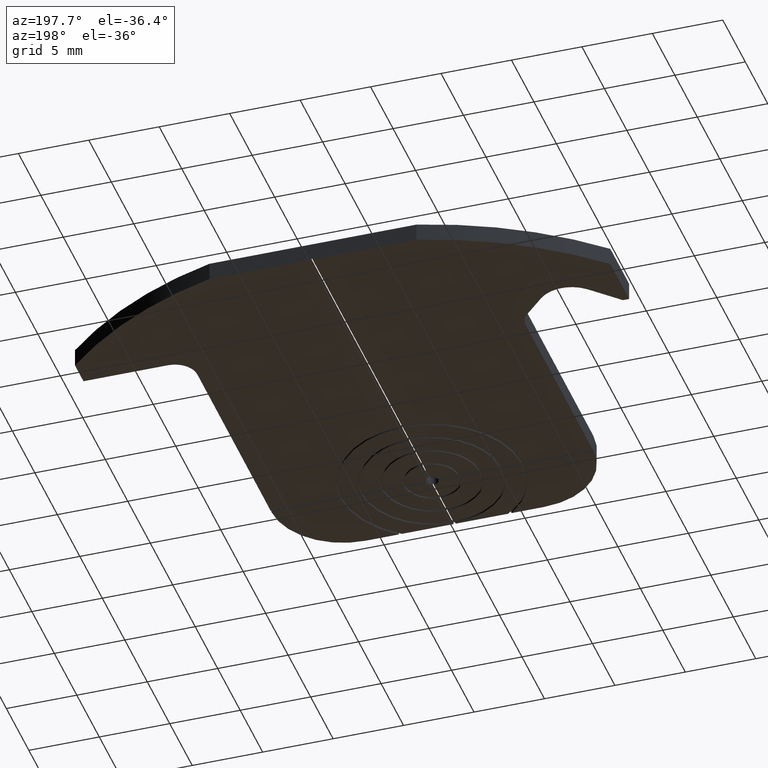
[diagram: clean part render]
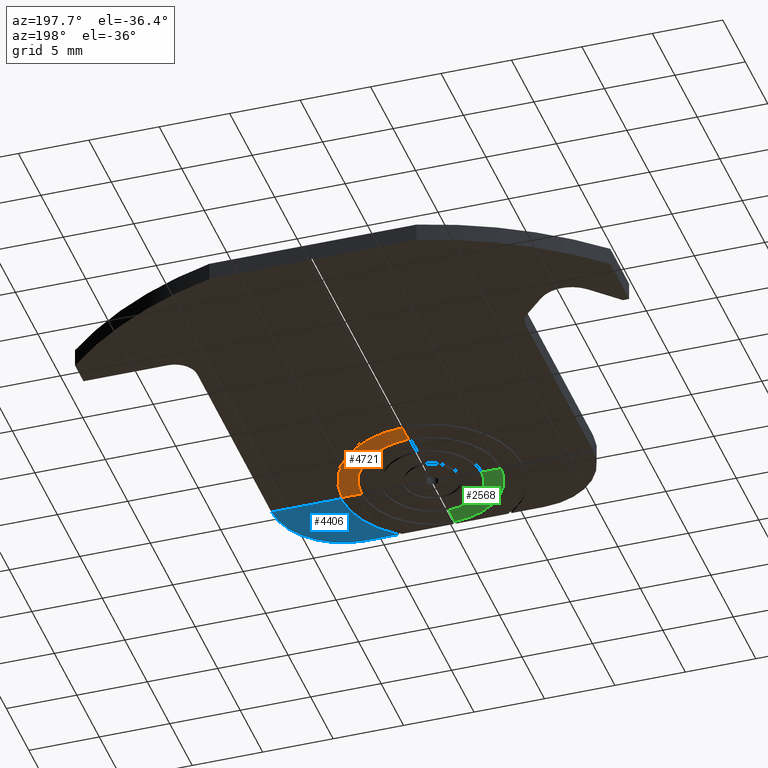
[diagram: same view with three faces highlighted in distinct colors, each labeled with its STEP entity id]
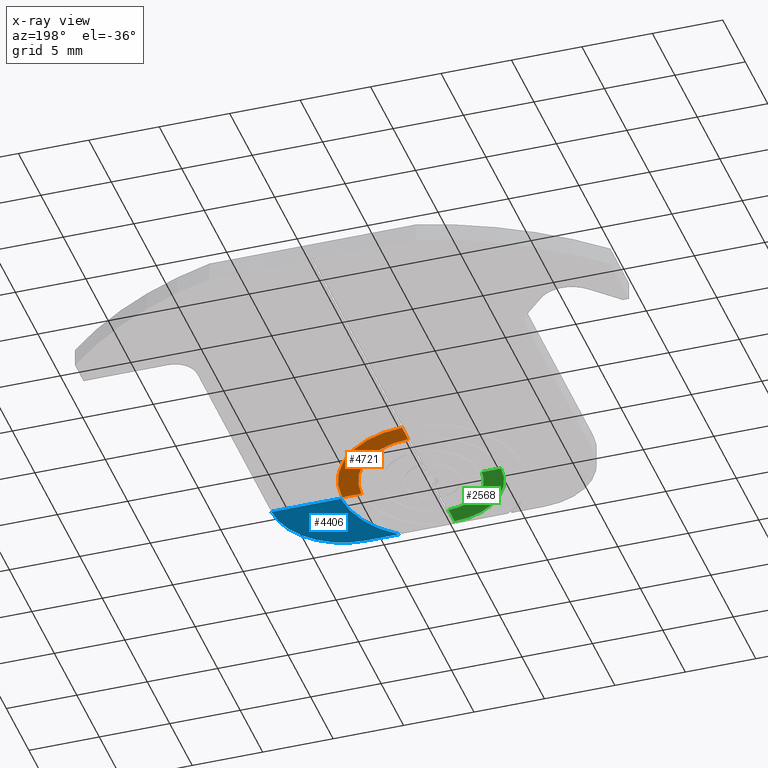
[diagram: x-ray of the same camera — body ghosted, the three highlighted faces saturated]
A machine part, auxiliary view with three faces highlighted in distinct colors.
The next image is the same camera in x-ray (body ghosted, the three faces saturated) — at least one of them is partly hidden behind the body in this view.
Their STEP definitions:

[orange] entity #4721 — the highlighted planar face has unit normal (0, 0, 1).
#69 = LINE ( 'NONE', #4804, #2828 ) ;
#104 = FACE_OUTER_BOUND ( 'NONE', #992, .T. ) ;
#348 = EDGE_CURVE ( 'NONE', #2754, #3452, #4090, .T. ) ;
#364 = CARTESIAN_POINT ( 'NONE',  ( 0.000000000000000000, 0.000000000000000000, 0.000000000000000000 ) ) ;
#481 = VERTEX_POINT ( 'NONE', #2072 ) ;
#524 = ORIENTED_EDGE ( 'NONE', *, *, #985, .T. ) ;
#816 = CARTESIAN_POINT ( 'NONE',  ( 0.08339658199999999688, 4.999294451241167003, 0.000000000000000000 ) ) ;
#907 = CARTESIAN_POINT ( 'NONE',  ( 0.000000000000000000, 0.000000000000000000, 0.000000000000000000 ) ) ;
#928 = DIRECTION ( 'NONE',  ( -1.000000000000000000, 0.000000000000000000, 0.000000000000000000 ) ) ;
#985 = EDGE_CURVE ( 'NONE', #481, #2754, #69, .T. ) ;
#992 = EDGE_LOOP ( 'NONE', ( #2559, #1646, #3490, #524 ) ) ;
#1014 = CARTESIAN_POINT ( 'NONE',  ( 4.999714947753159500, 0.05244465000000059912, 0.000000000000000000 ) ) ;
#1023 = DIRECTION ( 'NONE',  ( 0.000000000000000000, 0.000000000000000000, 1.000000000000000000 ) ) ;
#1037 = DIRECTION ( 'NONE',  ( 1.000000000000000000, 0.000000000000000000, -0.000000000000000000 ) ) ;
#1384 = DIRECTION ( 'NONE',  ( -1.000000000000000000, -1.283143729918167711E-16, 0.000000000000000000 ) ) ;
#1634 = EDGE_CURVE ( 'NONE', #3452, #1877, #3056, .T. ) ;
#1646 = ORIENTED_EDGE ( 'NONE', *, *, #1634, .T. ) ;
#1877 = VERTEX_POINT ( 'NONE', #3876 ) ;
#2072 = CARTESIAN_POINT ( 'NONE',  ( 6.372771207320670150, 0.05244465000000173710, 0.000000000000000000 ) ) ;
#2256 = DIRECTION ( 'NONE',  ( -1.000000000000000000, 0.000000000000000000, 0.000000000000000000 ) ) ;
#2414 = DIRECTION ( 'NONE',  ( 0.000000000000000000, 0.000000000000000000, -1.000000000000000000 ) ) ;
#2424 = DIRECTION ( 'NONE',  ( 0.000000000000000000, 1.000000000000000000, 0.000000000000000000 ) ) ;
#2559 = ORIENTED_EDGE ( 'NONE', *, *, #348, .T. ) ;
#2754 = VERTEX_POINT ( 'NONE', #1014 ) ;
#2828 = VECTOR ( 'NONE', #1384, 1000.000000000000000 ) ;
#2854 = CARTESIAN_POINT ( 'NONE',  ( 0.08339658199999999688, 4.999294451241167003, 0.000000000000000000 ) ) ;
#3005 = CIRCLE ( 'NONE', #3334, 6.372986999999998403 ) ;
#3056 = LINE ( 'NONE', #2854, #4332 ) ;
#3334 = AXIS2_PLACEMENT_3D ( 'NONE', #907, #2414, #928 ) ;
#3452 = VERTEX_POINT ( 'NONE', #816 ) ;
#3490 = ORIENTED_EDGE ( 'NONE', *, *, #4550, .T. ) ;
#3498 = AXIS2_PLACEMENT_3D ( 'NONE', #4065, #1023, #1037 ) ;
#3876 = CARTESIAN_POINT ( 'NONE',  ( 0.08339658199999974708, 6.372441314934152778, 0.000000000000000000 ) ) ;
#4065 = CARTESIAN_POINT ( 'NONE',  ( -15.23999999999999666, 19.07355610690431647, 0.000000000000000000 ) ) ;
#4090 = CIRCLE ( 'NONE', #4103, 4.999990000000000379 ) ;
#4103 = AXIS2_PLACEMENT_3D ( 'NONE', #364, #4197, #2256 ) ;
#4197 = DIRECTION ( 'NONE',  ( -0.000000000000000000, -0.000000000000000000, 1.000000000000000000 ) ) ;
#4332 = VECTOR ( 'NONE', #2424, 1000.000000000000000 ) ;
#4550 = EDGE_CURVE ( 'NONE', #1877, #481, #3005, .T. ) ;
#4721 = ADVANCED_FACE ( 'NONE', ( #104 ), #4858, .F. ) ;
#4804 = CARTESIAN_POINT ( 'NONE',  ( 6.372771207320671039, 0.05244465000000077953, 0.000000000000000000 ) ) ;
#4858 = PLANE ( 'NONE',  #3498 ) ;

[blue] entity #4406 — the highlighted planar face has unit normal (0, 0, 1).
#83 = DIRECTION ( 'NONE',  ( 0.000000000000000000, 0.000000000000000000, 1.000000000000000000 ) ) ;
#172 = EDGE_CURVE ( 'NONE', #1763, #1437, #1444, .T. ) ;
#314 = CARTESIAN_POINT ( 'NONE',  ( 0.000000000000000000, 0.000000000000000000, 0.000000000000000000 ) ) ;
#428 = ORIENTED_EDGE ( 'NONE', *, *, #172, .F. ) ;
#452 = CIRCLE ( 'NONE', #1692, 6.499987000000000847 ) ;
#459 = ORIENTED_EDGE ( 'NONE', *, *, #2333, .F. ) ;
#562 = EDGE_CURVE ( 'NONE', #3953, #1763, #1210, .T. ) ;
#938 = EDGE_LOOP ( 'NONE', ( #2182, #1907, #459, #428 ) ) ;
#1059 = DIRECTION ( 'NONE',  ( 1.000000000000000000, 0.000000000000000000, -0.000000000000000000 ) ) ;
#1135 = DIRECTION ( 'NONE',  ( -1.000000000000000000, -1.236949479633537386E-16, -0.000000000000000000 ) ) ;
#1146 = VECTOR ( 'NONE', #4495, 1000.000000000000000 ) ;
#1210 = LINE ( 'NONE', #4126, #1146 ) ;
#1216 = VECTOR ( 'NONE', #1135, 1000.000000000000000 ) ;
#1437 = VERTEX_POINT ( 'NONE', #3946 ) ;
#1443 = DIRECTION ( 'NONE',  ( 0.000000000000000000, 0.000000000000000000, 1.000000000000000000 ) ) ;
#1444 = CIRCLE ( 'NONE', #3576, 5.079999999999985860 ) ;
#1692 = AXIS2_PLACEMENT_3D ( 'NONE', #314, #2208, #2942 ) ;
#1763 = VERTEX_POINT ( 'NONE', #1911 ) ;
#1901 = AXIS2_PLACEMENT_3D ( 'NONE', #3228, #83, #1059 ) ;
#1907 = ORIENTED_EDGE ( 'NONE', *, *, #2217, .F. ) ;
#1911 = CARTESIAN_POINT ( 'NONE',  ( 6.350000000000012967, -5.130799999999998029, 0.000000000000000000 ) ) ;
#2182 = ORIENTED_EDGE ( 'NONE', *, *, #562, .F. ) ;
#2208 = DIRECTION ( 'NONE',  ( 0.000000000000000000, 0.000000000000000000, -1.000000000000000000 ) ) ;
#2217 = EDGE_CURVE ( 'NONE', #4633, #3953, #452, .T. ) ;
#2333 = EDGE_CURVE ( 'NONE', #1437, #4633, #2932, .T. ) ;
#2932 = LINE ( 'NONE', #4539, #1216 ) ;
#2942 = DIRECTION ( 'NONE',  ( -1.000000000000000000, 0.000000000000000000, 0.000000000000000000 ) ) ;
#3228 = CARTESIAN_POINT ( 'NONE',  ( -15.23999999999999666, 19.07355610690431647, 0.000000000000000000 ) ) ;
#3576 = AXIS2_PLACEMENT_3D ( 'NONE', #3725, #1443, #4505 ) ;
#3598 = PLANE ( 'NONE',  #1901 ) ;
#3609 = CARTESIAN_POINT ( 'NONE',  ( 6.499559408141092121, -0.07455534999999734180, 0.000000000000000000 ) ) ;
#3725 = CARTESIAN_POINT ( 'NONE',  ( 6.350000000000013856, -0.05080000000001218263, 0.000000000000000000 ) ) ;
#3866 = FACE_OUTER_BOUND ( 'NONE', #938, .T. ) ;
#3946 = CARTESIAN_POINT ( 'NONE',  ( 11.42994445671863346, -0.07455534999999730017, -0.000000000000000000 ) ) ;
#3953 = VERTEX_POINT ( 'NONE', #4819 ) ;
#4126 = CARTESIAN_POINT ( 'NONE',  ( -6.350000000000014744, -5.130799999999998029, 0.000000000000000000 ) ) ;
#4406 = ADVANCED_FACE ( 'NONE', ( #3866 ), #3598, .F. ) ;
#4495 = DIRECTION ( 'NONE',  ( 1.000000000000000000, 0.000000000000000000, 0.000000000000000000 ) ) ;
#4505 = DIRECTION ( 'NONE',  ( 1.000000000000000000, 0.000000000000000000, 0.000000000000000000 ) ) ;
#4539 = CARTESIAN_POINT ( 'NONE',  ( 6.499559408141091232, -0.07455534999999789691, -0.000000000000000000 ) ) ;
#4633 = VERTEX_POINT ( 'NONE', #3609 ) ;
#4819 = CARTESIAN_POINT ( 'NONE',  ( 3.990579201089613726, -5.130799999999998029, -0.000000000000000000 ) ) ;

[green] entity #2568 — the highlighted planar face has unit normal (0, 0, 1).
#145 = VERTEX_POINT ( 'NONE', #2190 ) ;
#240 = EDGE_CURVE ( 'NONE', #4514, #2835, #4770, .T. ) ;
#304 = LINE ( 'NONE', #2315, #1230 ) ;
#335 = CARTESIAN_POINT ( 'NONE',  ( -15.23999999999999666, 19.07355610690431647, 0.000000000000000000 ) ) ;
#366 = FACE_OUTER_BOUND ( 'NONE', #3264, .T. ) ;
#383 = DIRECTION ( 'NONE',  ( -1.000000000000000000, 0.000000000000000000, 0.000000000000000000 ) ) ;
#399 = DIRECTION ( 'NONE',  ( 0.000000000000000000, 0.000000000000000000, -1.000000000000000000 ) ) ;
#664 = AXIS2_PLACEMENT_3D ( 'NONE', #335, #3300, #3757 ) ;
#697 = ORIENTED_EDGE ( 'NONE', *, *, #2388, .T. ) ;
#786 = VERTEX_POINT ( 'NONE', #1996 ) ;
#1103 = CARTESIAN_POINT ( 'NONE',  ( 0.000000000000000000, 0.000000000000000000, 0.000000000000000000 ) ) ;
#1211 = ORIENTED_EDGE ( 'NONE', *, *, #240, .T. ) ;
#1230 = VECTOR ( 'NONE', #2338, 1000.000000000000000 ) ;
#1585 = VECTOR ( 'NONE', #4083, 1000.000000000000000 ) ;
#1981 = DIRECTION ( 'NONE',  ( -0.000000000000000000, -0.000000000000000000, 1.000000000000000000 ) ) ;
#1996 = CARTESIAN_POINT ( 'NONE',  ( -0.04360341799999865181, -3.499721380622708544, 0.000000000000000000 ) ) ;
#2044 = AXIS2_PLACEMENT_3D ( 'NONE', #2602, #1981, #3446 ) ;
#2116 = CARTESIAN_POINT ( 'NONE',  ( -0.04360341800000000489, -3.499721380622708544, 0.000000000000000000 ) ) ;
#2190 = CARTESIAN_POINT ( 'NONE',  ( -3.499198836853282923, -0.07455534999999714751, 0.000000000000000000 ) ) ;
#2262 = CARTESIAN_POINT ( 'NONE',  ( -4.872419628879102405, -0.07455534999999950674, 0.000000000000000000 ) ) ;
#2315 = CARTESIAN_POINT ( 'NONE',  ( -4.872419628879102405, -0.07455534999999950674, 0.000000000000000000 ) ) ;
#2338 = DIRECTION ( 'NONE',  ( 1.000000000000000000, 8.882238392609921593E-17, 0.000000000000000000 ) ) ;
#2388 = EDGE_CURVE ( 'NONE', #2835, #145, #304, .T. ) ;
#2568 = ADVANCED_FACE ( 'NONE', ( #366 ), #4133, .F. ) ;
#2602 = CARTESIAN_POINT ( 'NONE',  ( 0.000000000000000000, 0.000000000000000000, 0.000000000000000000 ) ) ;
#2835 = VERTEX_POINT ( 'NONE', #2262 ) ;
#3264 = EDGE_LOOP ( 'NONE', ( #1211, #697, #4923, #3298 ) ) ;
#3298 = ORIENTED_EDGE ( 'NONE', *, *, #4697, .T. ) ;
#3300 = DIRECTION ( 'NONE',  ( 0.000000000000000000, 0.000000000000000000, 1.000000000000000000 ) ) ;
#3446 = DIRECTION ( 'NONE',  ( -1.000000000000000000, 0.000000000000000000, 0.000000000000000000 ) ) ;
#3517 = AXIS2_PLACEMENT_3D ( 'NONE', #1103, #399, #383 ) ;
#3757 = DIRECTION ( 'NONE',  ( 1.000000000000000000, 0.000000000000000000, -0.000000000000000000 ) ) ;
#3921 = CIRCLE ( 'NONE', #2044, 3.499992999999999910 ) ;
#4083 = DIRECTION ( 'NONE',  ( 0.000000000000000000, -1.000000000000000000, 0.000000000000000000 ) ) ;
#4133 = PLANE ( 'NONE',  #664 ) ;
#4346 = CARTESIAN_POINT ( 'NONE',  ( -0.04360341800000000489, -4.872794914834679858, 0.000000000000000000 ) ) ;
#4399 = EDGE_CURVE ( 'NONE', #145, #786, #3921, .T. ) ;
#4514 = VERTEX_POINT ( 'NONE', #4346 ) ;
#4634 = LINE ( 'NONE', #2116, #1585 ) ;
#4697 = EDGE_CURVE ( 'NONE', #786, #4514, #4634, .T. ) ;
#4770 = CIRCLE ( 'NONE', #3517, 4.872989999999999711 ) ;
#4923 = ORIENTED_EDGE ( 'NONE', *, *, #4399, .T. ) ;